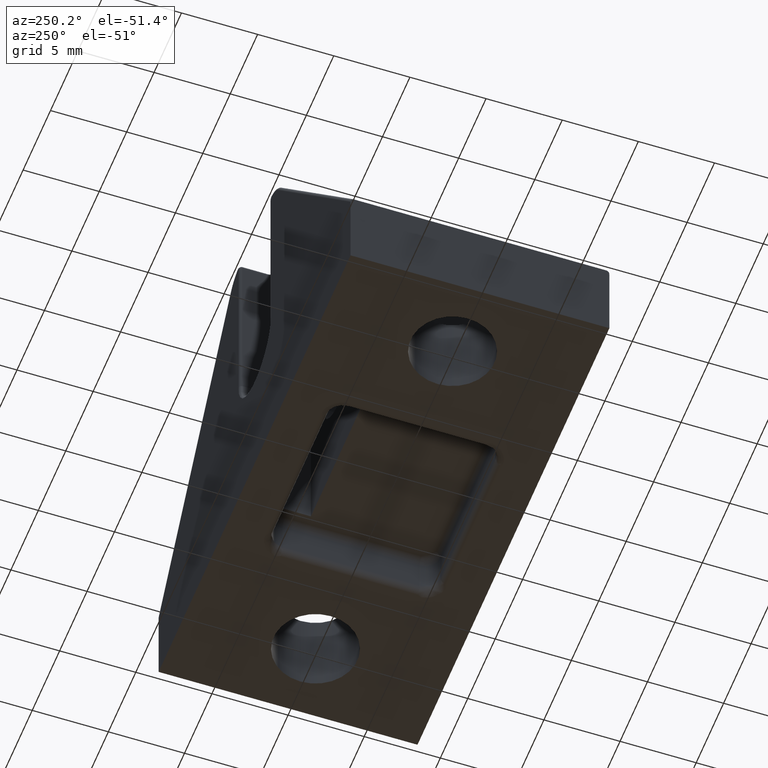
[diagram: clean part render]
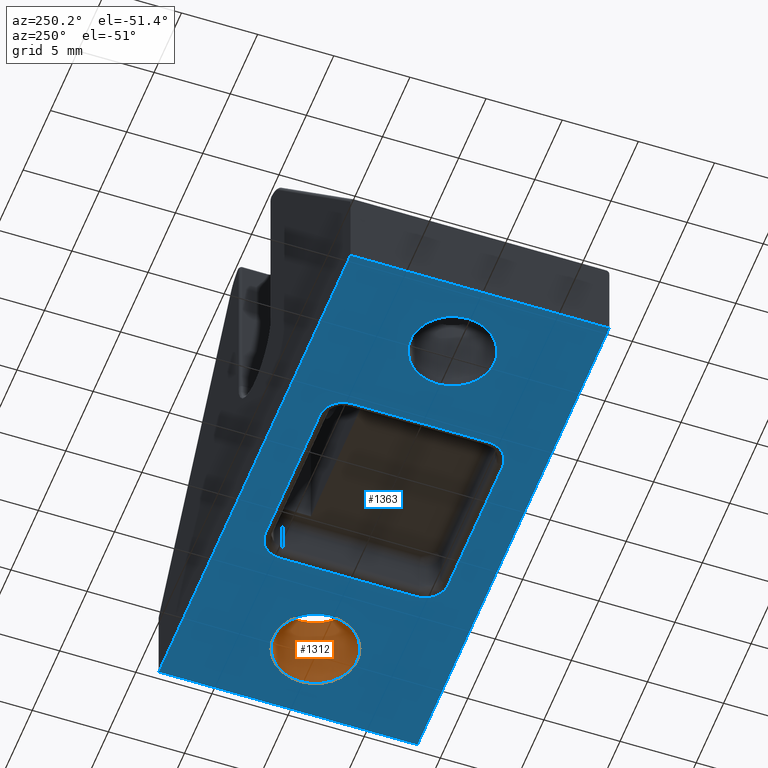
[diagram: same view with the hole feature highlighted: cylindrical wall and planar end face, labeled with their STEP entity ids]
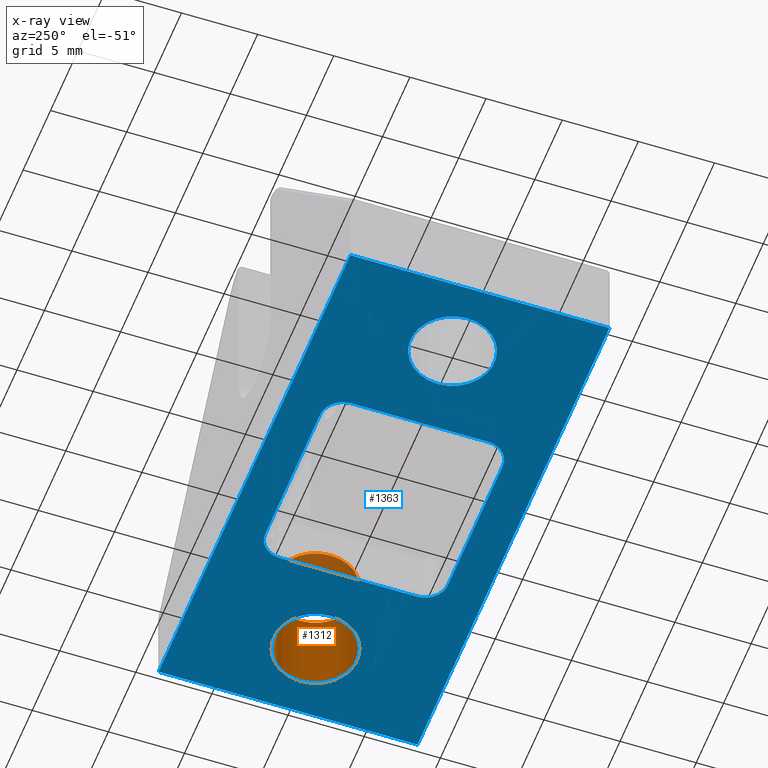
[diagram: x-ray of the same camera — body ghosted, the hole faces saturated]
A machine part, auxiliary view. The highlighted faces form one hole feature of diameter 5.5 mm: the cylindrical wall (entity #1312, orange) and its adjacent planar end face (entity #1363, blue) — they share a circular edge in the B-rep.
The next image is the same camera in x-ray (body ghosted, the hole faces saturated) — the bore reads through the body.
Wall:
#103=FACE_OUTER_BOUND('',#185,.T.);
#185=EDGE_LOOP('',(#913,#914,#915,#916));
#266=CIRCLE('',#1423,2.75004135696124);
#267=CIRCLE('',#1425,2.75004135696124);
#358=LINE('',#2014,#460);
#460=VECTOR('',#1623,2.75004135696124);
#563=VERTEX_POINT('',#2009);
#564=VERTEX_POINT('',#2012);
#697=EDGE_CURVE('',#563,#563,#266,.T.);
#698=EDGE_CURVE('',#564,#564,#267,.T.);
#699=EDGE_CURVE('',#564,#563,#358,.T.);
#913=ORIENTED_EDGE('',*,*,#698,.F.);
#914=ORIENTED_EDGE('',*,*,#699,.T.);
#915=ORIENTED_EDGE('',*,*,#697,.T.);
#916=ORIENTED_EDGE('',*,*,#699,.F.);
#1270=CYLINDRICAL_SURFACE('',#1424,2.75004135696124);
#1312=ADVANCED_FACE('',(#103),#1270,.F.);
#1423=AXIS2_PLACEMENT_3D('',#2010,#1617,#1618);
#1424=AXIS2_PLACEMENT_3D('',#2011,#1619,#1620);
#1425=AXIS2_PLACEMENT_3D('',#2013,#1621,#1622);
#1617=DIRECTION('center_axis',(0.,0.,1.));
#1618=DIRECTION('ref_axis',(1.,0.,0.));
#1619=DIRECTION('center_axis',(0.,0.,1.));
#1620=DIRECTION('ref_axis',(1.,0.,0.));
#1621=DIRECTION('center_axis',(0.,0.,1.));
#1622=DIRECTION('ref_axis',(1.,0.,0.));
#1623=DIRECTION('',(0.,0.,1.));
#2009=CARTESIAN_POINT('',(-2.75004135696124,3.673939E-16,5.99999805322659));
#2010=CARTESIAN_POINT('Origin',(0.,3.673939E-16,5.99999805322659));
#2011=CARTESIAN_POINT('Origin',(0.,3.673939E-16,5.99999805322659));
#2012=CARTESIAN_POINT('',(-2.75004135696124,0.,0.));
#2013=CARTESIAN_POINT('Origin',(0.,0.,0.));
#2014=CARTESIAN_POINT('',(-2.75004135696124,3.06109654674576E-17,5.99999805322659));
End face:
#54=FACE_BOUND('',#239,.T.);
#55=FACE_BOUND('',#240,.T.);
#56=FACE_BOUND('',#241,.T.);
#85=PLANE('',#1516);
#154=FACE_OUTER_BOUND('',#238,.T.);
#238=EDGE_LOOP('',(#1181,#1182,#1183,#1184));
#239=EDGE_LOOP('',(#1185));
#240=EDGE_LOOP('',(#1186));
#241=EDGE_LOOP('',(#1187,#1188,#1189,#1190,#1191,#1192,#1193,#1194));
#267=CIRCLE('',#1425,2.75004135696124);
#268=CIRCLE('',#1427,2.75004135696124);
#319=CIRCLE('',#1517,1.49999999999592);
#320=CIRCLE('',#1518,1.49999999999636);
#321=CIRCLE('',#1519,1.49999999999598);
#322=CIRCLE('',#1520,1.499999999996);
#372=LINE('',#3068,#474);
#379=LINE('',#3083,#481);
#388=LINE('',#3113,#490);
#404=LINE('',#3668,#506);
#422=LINE('',#3988,#524);
#423=LINE('',#3992,#525);
#424=LINE('',#3996,#526);
#425=LINE('',#4000,#527);
#474=VECTOR('',#1675,16.999899999932);
#481=VECTOR('',#1688,16.999899999932);
#490=VECTOR('',#1717,35.0000024583501);
#506=VECTOR('',#1797,35.0000024583501);
#524=VECTOR('',#1869,9.99999999995998);
#525=VECTOR('',#1872,8.9998999999639);
#526=VECTOR('',#1875,9.99999999995953);
#527=VECTOR('',#1878,8.99989999996363);
#564=VERTEX_POINT('',#2012);
#565=VERTEX_POINT('',#2016);
#590=VERTEX_POINT('',#3065);
#591=VERTEX_POINT('',#3067);
#595=VERTEX_POINT('',#3080);
#596=VERTEX_POINT('',#3082);
#648=VERTEX_POINT('',#3986);
#649=VERTEX_POINT('',#3987);
#650=VERTEX_POINT('',#3989);
#651=VERTEX_POINT('',#3991);
#652=VERTEX_POINT('',#3993);
#653=VERTEX_POINT('',#3995);
#654=VERTEX_POINT('',#3997);
#655=VERTEX_POINT('',#3999);
#698=EDGE_CURVE('',#564,#564,#267,.T.);
#700=EDGE_CURVE('',#565,#565,#268,.T.);
#735=EDGE_CURVE('',#590,#591,#372,.T.);
#743=EDGE_CURVE('',#596,#595,#379,.T.);
#759=EDGE_CURVE('',#590,#596,#388,.T.);
#799=EDGE_CURVE('',#591,#595,#404,.T.);
#834=EDGE_CURVE('',#648,#649,#422,.T.);
#835=EDGE_CURVE('',#650,#649,#319,.T.);
#836=EDGE_CURVE('',#651,#650,#423,.T.);
#837=EDGE_CURVE('',#652,#651,#320,.T.);
#838=EDGE_CURVE('',#653,#652,#424,.T.);
#839=EDGE_CURVE('',#654,#653,#321,.T.);
#840=EDGE_CURVE('',#655,#654,#425,.T.);
#841=EDGE_CURVE('',#648,#655,#322,.T.);
#1181=ORIENTED_EDGE('',*,*,#759,.T.);
#1182=ORIENTED_EDGE('',*,*,#743,.T.);
#1183=ORIENTED_EDGE('',*,*,#799,.F.);
#1184=ORIENTED_EDGE('',*,*,#735,.F.);
#1185=ORIENTED_EDGE('',*,*,#698,.T.);
#1186=ORIENTED_EDGE('',*,*,#700,.T.);
#1187=ORIENTED_EDGE('',*,*,#834,.T.);
#1188=ORIENTED_EDGE('',*,*,#835,.F.);
#1189=ORIENTED_EDGE('',*,*,#836,.F.);
#1190=ORIENTED_EDGE('',*,*,#837,.F.);
#1191=ORIENTED_EDGE('',*,*,#838,.F.);
#1192=ORIENTED_EDGE('',*,*,#839,.F.);
#1193=ORIENTED_EDGE('',*,*,#840,.F.);
#1194=ORIENTED_EDGE('',*,*,#841,.F.);
#1363=ADVANCED_FACE('',(#154,#54,#55,#56),#85,.T.);
#1425=AXIS2_PLACEMENT_3D('',#2013,#1621,#1622);
#1427=AXIS2_PLACEMENT_3D('',#2017,#1626,#1627);
#1516=AXIS2_PLACEMENT_3D('',#3985,#1867,#1868);
#1517=AXIS2_PLACEMENT_3D('',#3990,#1870,#1871);
#1518=AXIS2_PLACEMENT_3D('',#3994,#1873,#1874);
#1519=AXIS2_PLACEMENT_3D('',#3998,#1876,#1877);
#1520=AXIS2_PLACEMENT_3D('',#4001,#1879,#1880);
#1621=DIRECTION('center_axis',(0.,0.,1.));
#1622=DIRECTION('ref_axis',(1.,0.,0.));
#1626=DIRECTION('center_axis',(0.,0.,1.));
#1627=DIRECTION('ref_axis',(1.,0.,0.));
#1675=DIRECTION('',(0.,-1.,0.));
#1688=DIRECTION('',(0.,-1.,0.));
#1717=DIRECTION('',(1.,0.,0.));
#1797=DIRECTION('',(1.,0.,0.));
#1867=DIRECTION('center_axis',(0.,0.,-1.));
#1868=DIRECTION('ref_axis',(-1.,0.,0.));
#1869=DIRECTION('',(-1.,0.,0.));
#1870=DIRECTION('center_axis',(0.,0.,-1.));
#1871=DIRECTION('ref_axis',(1.,0.,0.));
#1872=DIRECTION('',(0.,1.,0.));
#1873=DIRECTION('center_axis',(0.,0.,-1.));
#1874=DIRECTION('ref_axis',(0.,-1.,0.));
#1875=DIRECTION('',(-1.,0.,0.));
#1876=DIRECTION('center_axis',(0.,0.,-1.));
#1877=DIRECTION('ref_axis',(1.,0.,0.));
#1878=DIRECTION('',(0.,-1.,0.));
#1879=DIRECTION('center_axis',(0.,0.,-1.));
#1880=DIRECTION('ref_axis',(0.,1.,0.));
#2012=CARTESIAN_POINT('',(-2.75004135696124,0.,0.));
#2013=CARTESIAN_POINT('Origin',(0.,0.,0.));
#2016=CARTESIAN_POINT('',(-27.7500413568612,0.,0.));
#2017=CARTESIAN_POINT('Origin',(-24.9999999999,0.,0.));
#3065=CARTESIAN_POINT('',(-29.99999999988,8.49999999996635,-5.204749E-16));
#3067=CARTESIAN_POINT('',(-29.99999999988,-8.49989999996569,5.204688E-16));
#3068=CARTESIAN_POINT('',(-29.99999999988,8.49999999996635,-5.204749E-16));
#3080=CARTESIAN_POINT('',(5.00000245847014,-8.49989999996569,5.204688E-16));
#3082=CARTESIAN_POINT('',(5.00000245847014,8.49999999996635,-5.204749E-16));
#3083=CARTESIAN_POINT('',(5.00000245847014,8.49999999996635,-5.204749E-16));
#3113=CARTESIAN_POINT('',(-29.99999999988,8.49999999996635,-5.204749E-16));
#3668=CARTESIAN_POINT('',(-29.99999999988,-8.49989999996569,5.204688E-16));
#3985=CARTESIAN_POINT('Origin',(-29.99999999988,8.49999999996635,-5.204749E-16));
#3986=CARTESIAN_POINT('',(-7.49999999996999,5.99999999997817,-3.67394E-16));
#3987=CARTESIAN_POINT('',(-17.49999999993,5.99999999997817,-3.67394E-16));
#3988=CARTESIAN_POINT('',(-7.49999999996999,5.99999999997817,-3.67394E-16));
#3989=CARTESIAN_POINT('',(-18.9999999999259,4.4999999999823,-2.755455E-16));
#3990=CARTESIAN_POINT('Origin',(-17.49999999993,4.4999999999823,-2.755455E-16));
#3991=CARTESIAN_POINT('',(-18.9999999999259,-4.49989999998161,2.755394E-16));
#3992=CARTESIAN_POINT('',(-18.9999999999259,-4.49989999998161,2.755394E-16));
#3993=CARTESIAN_POINT('',(-17.4999999999295,-5.99989999997797,3.673879E-16));
#3994=CARTESIAN_POINT('Origin',(-17.4999999999295,-4.49989999998161,2.755394E-16));
#3995=CARTESIAN_POINT('',(-7.49999999996999,-5.99989999997797,3.673879E-16));
#3996=CARTESIAN_POINT('',(-7.49999999996999,-5.99989999997797,3.673879E-16));
#3997=CARTESIAN_POINT('',(-5.99999999997408,-4.49989999998142,2.755394E-16));
#3998=CARTESIAN_POINT('Origin',(-7.49999999996999,-4.49989999998199,2.755394E-16));
#3999=CARTESIAN_POINT('',(-5.99999999997408,4.49999999998222,-2.755455E-16));
#4000=CARTESIAN_POINT('',(-5.99999999997408,4.49999999998222,-2.755455E-16));
#4001=CARTESIAN_POINT('Origin',(-7.49999999996999,4.49999999998222,-2.755455E-16));